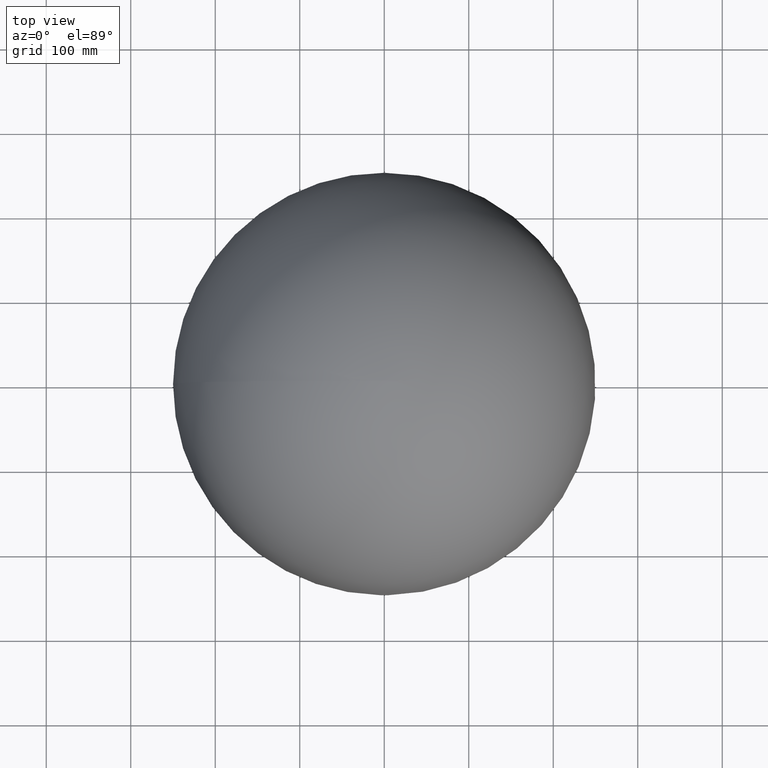
[diagram: clean part render]
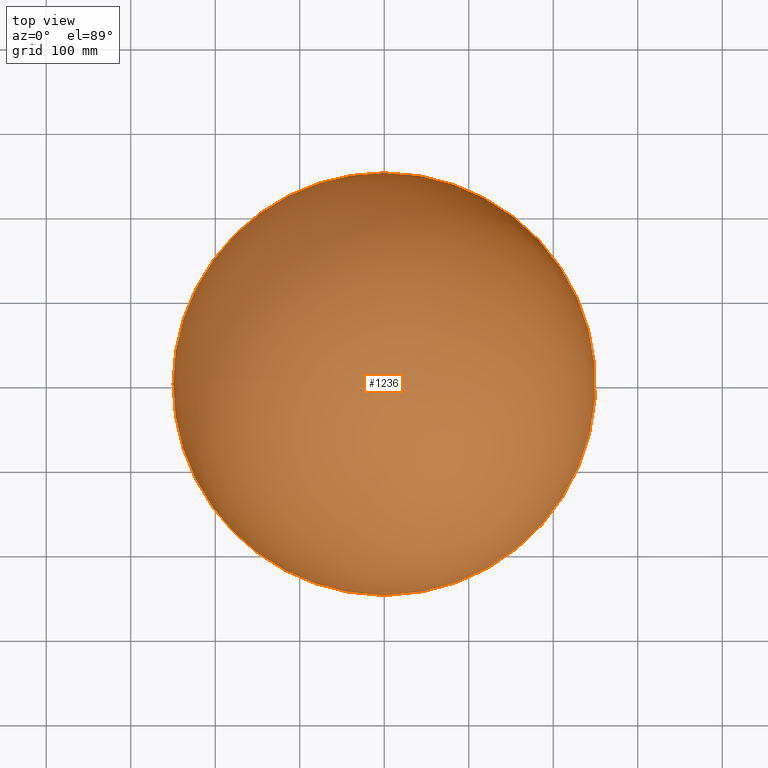
[diagram: same view with one face highlighted and labeled with its STEP entity id]
A machine part, top view. The second image highlights one B-rep face of the part: STEP entity #1236.
In plain terms, the highlighted spherical surface has radius 250 mm.
Its self-contained STEP definition (entity closure, byte-faithful):
#81 = CARTESIAN_POINT ( 'NONE',  ( 4.749420330849005700, -249.9548819417634900, -5.816362405979598300E-016 ) ) ;
#129 = DIRECTION ( 'NONE',  ( -0.0000000000000000000, 1.000000000000000000, -0.0000000000000000000 ) ) ;
#316 = VERTEX_POINT ( 'NONE', #81 ) ;
#674 = VERTEX_POINT ( 'NONE', #11937 ) ;
#1236 = ADVANCED_FACE ( 'NONE', ( #7768 ), #5309, .T. ) ;
#1481 = AXIS2_PLACEMENT_3D ( 'NONE', #9931, #4240, #10901 ) ;
#1658 = AXIS2_PLACEMENT_3D ( 'NONE', #6001, #129, #5327 ) ;
#1823 = CIRCLE ( 'NONE', #8893, 250.0000000000000000 ) ;
#2093 = EDGE_CURVE ( 'NONE', #7185, #316, #10407, .T. ) ;
#2220 = DIRECTION ( 'NONE',  ( -1.000000000000000000, 0.0000000000000000000, 1.224646799147353200E-016 ) ) ;
#2430 = AXIS2_PLACEMENT_3D ( 'NONE', #5185, #5969, #6055 ) ;
#3477 = AXIS2_PLACEMENT_3D ( 'NONE', #6893, #4012, #2220 ) ;
#3575 = CIRCLE ( 'NONE', #1658, 4.749420330849546600 ) ;
#4012 = DIRECTION ( 'NONE',  ( -1.224646799147353200E-016, 0.0000000000000000000, -1.000000000000000000 ) ) ;
#4047 = EDGE_CURVE ( 'NONE', #4912, #316, #11741, .T. ) ;
#4240 = DIRECTION ( 'NONE',  ( -0.0000000000000000000, 1.000000000000000000, -0.0000000000000000000 ) ) ;
#4861 = CARTESIAN_POINT ( 'NONE',  ( 0.0000000000000000000, 0.0000000000000000000, 0.0000000000000000000 ) ) ;
#4894 = CARTESIAN_POINT ( 'NONE',  ( 5.816362405980261900E-016, -249.9548819417634900, 4.749420330849547500 ) ) ;
#4912 = VERTEX_POINT ( 'NONE', #4894 ) ;
#5185 = CARTESIAN_POINT ( 'NONE',  ( 0.0000000000000000000, 0.0000000000000000000, 0.0000000000000000000 ) ) ;
#5309 = SPHERICAL_SURFACE ( 'NONE', #2430, 250.0000000000000000 ) ;
#5327 = DIRECTION ( 'NONE',  ( 0.0000000000000000000, 0.0000000000000000000, 1.000000000000000000 ) ) ;
#5464 = CARTESIAN_POINT ( 'NONE',  ( -1.530808498934191600E-014, 250.0000000000000000, 0.0000000000000000000 ) ) ;
#5604 = ORIENTED_EDGE ( 'NONE', *, *, #4047, .T. ) ;
#5835 = DIRECTION ( 'NONE',  ( 1.000000000000000000, 0.0000000000000000000, 0.0000000000000000000 ) ) ;
#5969 = DIRECTION ( 'NONE',  ( -0.0000000000000000000, -0.0000000000000000000, -1.000000000000000000 ) ) ;
#6001 = CARTESIAN_POINT ( 'NONE',  ( 0.0000000000000000000, -249.9548819417634900, 0.0000000000000000000 ) ) ;
#6055 = DIRECTION ( 'NONE',  ( -1.000000000000000000, 0.0000000000000000000, 0.0000000000000000000 ) ) ;
#6619 = ORIENTED_EDGE ( 'NONE', *, *, #2093, .F. ) ;
#6635 = EDGE_CURVE ( 'NONE', #7185, #674, #1823, .T. ) ;
#6893 = CARTESIAN_POINT ( 'NONE',  ( 0.0000000000000000000, 0.0000000000000000000, 0.0000000000000000000 ) ) ;
#7185 = VERTEX_POINT ( 'NONE', #5464 ) ;
#7768 = FACE_OUTER_BOUND ( 'NONE', #7994, .T. ) ;
#7994 = EDGE_LOOP ( 'NONE', ( #6619, #11637, #11063, #5604 ) ) ;
#8893 = AXIS2_PLACEMENT_3D ( 'NONE', #4861, #11454, #5835 ) ;
#9931 = CARTESIAN_POINT ( 'NONE',  ( 0.0000000000000000000, -249.9548819417634900, 0.0000000000000000000 ) ) ;
#10187 = EDGE_CURVE ( 'NONE', #674, #4912, #3575, .T. ) ;
#10407 = CIRCLE ( 'NONE', #3477, 250.0000000000000000 ) ;
#10901 = DIRECTION ( 'NONE',  ( 0.0000000000000000000, 0.0000000000000000000, 1.000000000000000000 ) ) ;
#11063 = ORIENTED_EDGE ( 'NONE', *, *, #10187, .T. ) ;
#11454 = DIRECTION ( 'NONE',  ( -0.0000000000000000000, 0.0000000000000000000, 1.000000000000000000 ) ) ;
#11637 = ORIENTED_EDGE ( 'NONE', *, *, #6635, .T. ) ;
#11741 = CIRCLE ( 'NONE', #1481, 4.749420330849546600 ) ;
#11937 = CARTESIAN_POINT ( 'NONE',  ( -4.749420330849005700, -249.9548819417634900, 0.0000000000000000000 ) ) ;